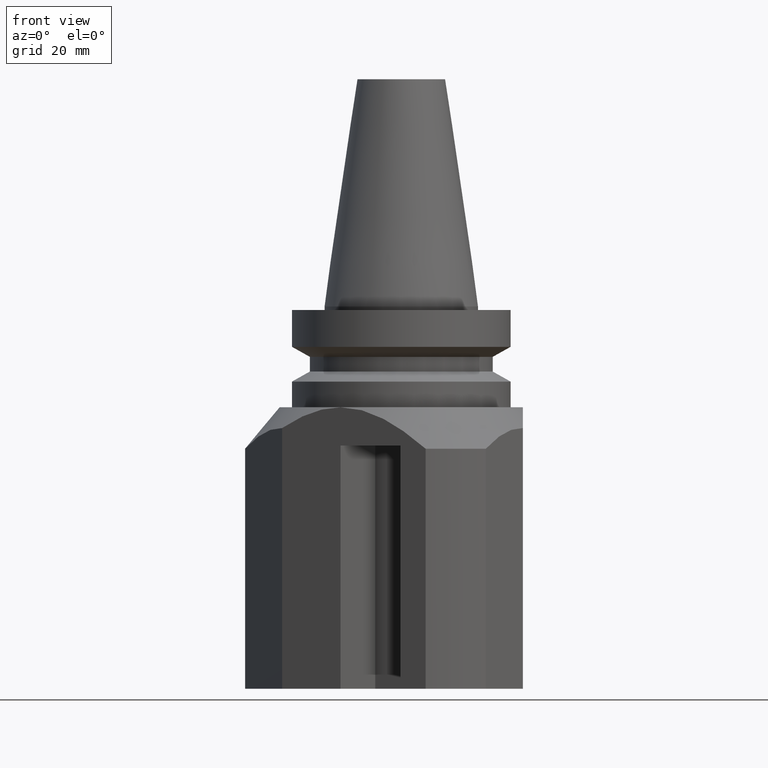
[diagram: clean part render]
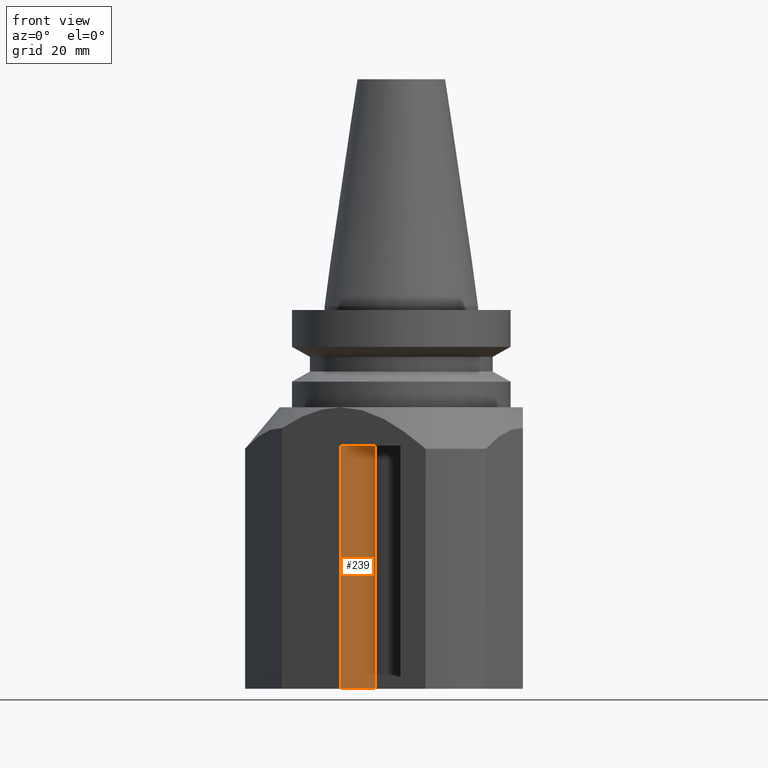
[diagram: same view with one face highlighted and labeled with its STEP entity id]
A machine part, front view. The second image highlights one B-rep face of the part: STEP entity #239.
In plain terms, the highlighted planar face has unit normal (-0.866, 0.5, 0).
Its self-contained STEP definition (entity closure, byte-faithful):
#239=ADVANCED_FACE('Unnamed[1]',(#582),#583,.F.);
#273=EDGE_CURVE('Unnamed[1]',#460,#629,#630,.T.);
#277=EDGE_CURVE('Unnamed[1]',#564,#629,#635,.T.);
#302=EDGE_CURVE('Unnamed[1]',#546,#564,#664,.T.);
#403=EDGE_CURVE('Unnamed[1]',#460,#546,#790,.T.);
#460=VERTEX_POINT('',#854);
#546=VERTEX_POINT('',#979);
#564=VERTEX_POINT('',#1015);
#582=FACE_OUTER_BOUND('',#1040,.T.);
#583=PLANE('',#1041);
#629=VERTEX_POINT('',#1117);
#630=LINE('',#1118,#1119);
#635=LINE('',#1127,#1128);
#664=LINE('',#1190,#1191);
#790=LINE('',#1411,#1412);
#854=CARTESIAN_POINT('',(-7.50000000000007,-12.9903810567671,-110.0));
#979=CARTESIAN_POINT('',(-17.4999999999993,-30.3108891324544,-110.0));
#1015=CARTESIAN_POINT('',(-17.4999999999993,-30.3108891324544,-39.9999999999998));
#1040=EDGE_LOOP('',(#1574,#1575,#1576,#1577));
#1041=AXIS2_PLACEMENT_3D('',#1578,#1579,#1580);
#1117=CARTESIAN_POINT('',(-7.50000000000003,-12.9903810567671,-39.9999999999998));
#1118=CARTESIAN_POINT('',(-7.50000000000016,-12.9903810567671,-279.0));
#1119=VECTOR('',#1626,1.0);
#1127=CARTESIAN_POINT('',(-7.50000000000003,-12.990381056767,-39.9999999999998));
#1128=VECTOR('',#1628,1.0);
#1190=CARTESIAN_POINT('',(-17.4999999999994,-30.3108891324544,-279.0));
#1191=VECTOR('',#1660,1.0);
#1411=CARTESIAN_POINT('',(-1.50360710371211,-2.60432389825131,-110.0));
#1412=VECTOR('',#1833,1.0);
#1574=ORIENTED_EDGE('',*,*,#302,.F.);
#1575=ORIENTED_EDGE('',*,*,#403,.F.);
#1576=ORIENTED_EDGE('',*,*,#273,.T.);
#1577=ORIENTED_EDGE('',*,*,#277,.F.);
#1578=CARTESIAN_POINT('',(-12.7499999999998,-22.083647796503,-279.0));
#1579=DIRECTION('',(-0.866025403784437,0.500000000000003,4.16026517468839E-016));
#1580=DIRECTION('',(-0.500000000000003,-0.866025403784437,3.81603053680646E-016));
#1626=DIRECTION('',(5.51091059616309E-016,1.22464679914735E-016,1.0));
#1628=DIRECTION('',(0.500000000000003,0.866025403784437,-3.81603053680646E-016));
#1660=DIRECTION('',(5.51091059616309E-016,1.22464679914735E-016,1.0));
#1833=DIRECTION('',(-0.500000000000003,-0.866025403784437,4.21043542479102E-015));